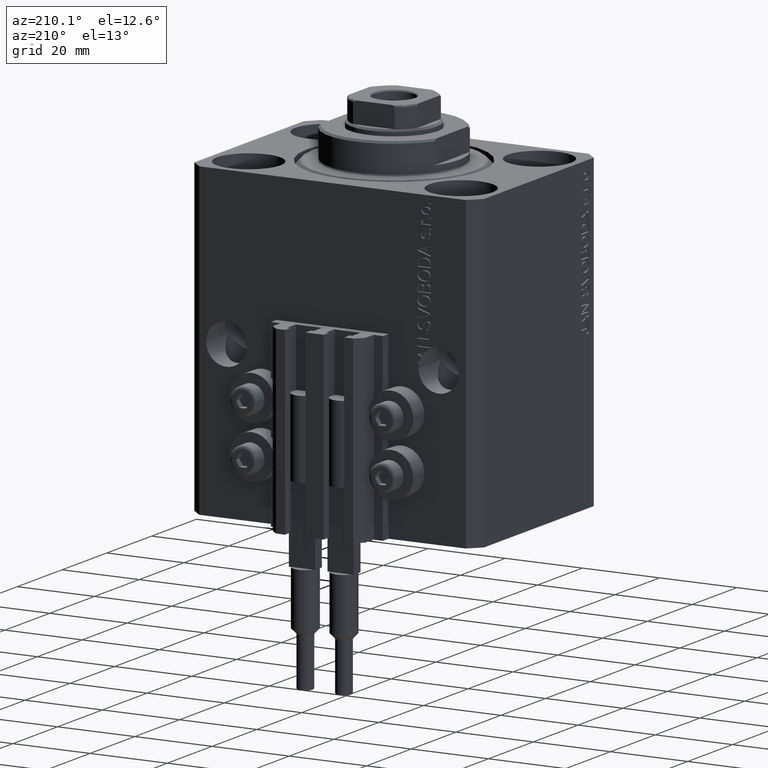
[diagram: clean part render]
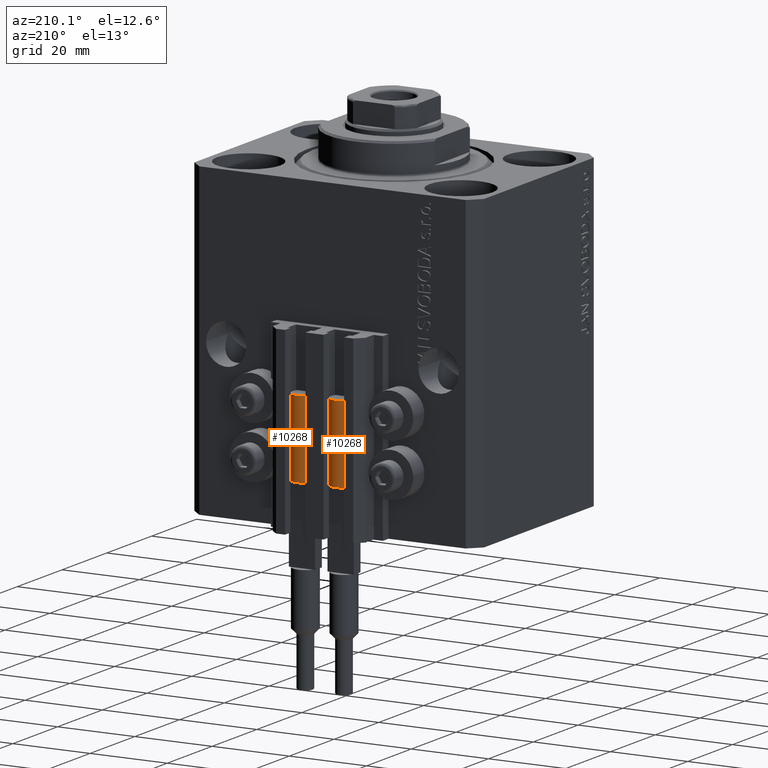
[diagram: same view with one multi-face feature highlighted, each face labeled with its STEP entity id]
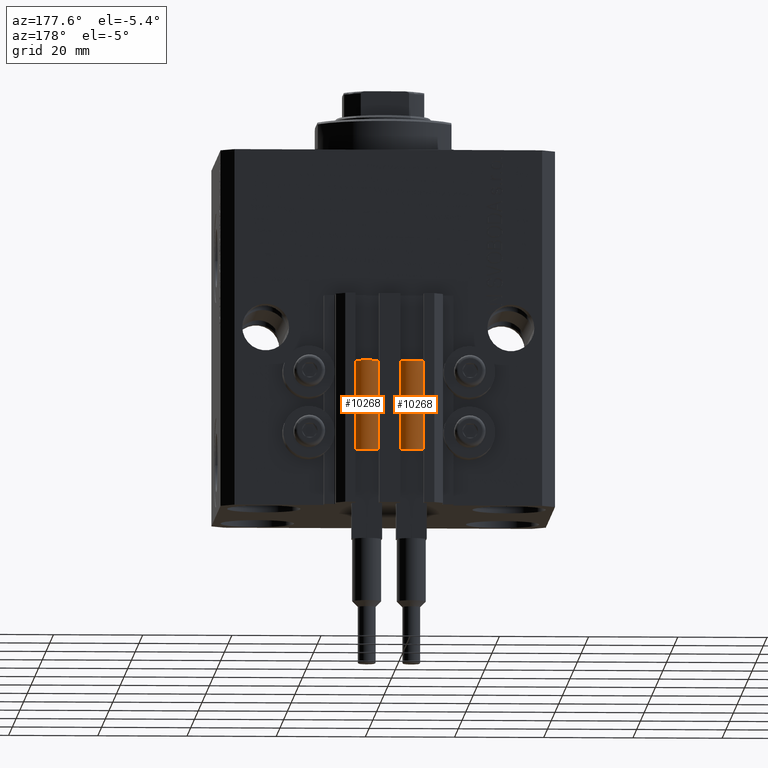
[diagram: same view with one multi-face feature highlighted, each face labeled with its STEP entity id]
A machine part, auxiliary view. The highlighted faces form ONE feature: a constant-radius fillet chain: 2 tangent blend faces with common blend radius 3.4 mm. The faces share edges in the B-rep.
A second angle (auxiliary view) of the same feature is appended — it is thin or edge-on in the first view.
Their STEP definitions:
[1] entity #10268 (Cylinder):
#235 = CARTESIAN_POINT ( 'NONE',  ( 0.000000000000000000, 0.000000000000000000, 0.000000000000000000 ) ) ;
#4156 = CIRCLE ( 'NONE', #23378, 3.400000000000000355 ) ;
#4816 = VERTEX_POINT ( 'NONE', #16350 ) ;
#5758 = ORIENTED_EDGE ( 'NONE', *, *, #6944, .F. ) ;
#6564 = EDGE_CURVE ( 'NONE', #11008, #44448, #29988, .T. ) ;
#6944 = EDGE_CURVE ( 'NONE', #38289, #43578, #4156, .T. ) ;
#8269 = CARTESIAN_POINT ( 'NONE',  ( -3.399999999999999467, -4.915049848600952119E-16, 20.00000000000000000 ) ) ;
#8871 = CIRCLE ( 'NONE', #10406, 3.400000000000000355 ) ;
#9614 = AXIS2_PLACEMENT_3D ( 'NONE', #29876, #36862, #25290 ) ;
#9730 = VERTEX_POINT ( 'NONE', #21472 ) ;
#9949 = EDGE_LOOP ( 'NONE', ( #5758, #43833, #12592, #18397, #25035, #26570 ) ) ;
#10143 = AXIS2_PLACEMENT_3D ( 'NONE', #25291, #18051, #22141 ) ;
#10263 = EDGE_CURVE ( 'NONE', #4816, #44448, #8871, .T. ) ;
#10268 = ADVANCED_FACE ( 'NONE', ( #22139 ), #10829, .T. ) ;
#10406 = AXIS2_PLACEMENT_3D ( 'NONE', #235, #25769, #11539 ) ;
#10589 = CARTESIAN_POINT ( 'NONE',  ( 3.400000000000000355, 4.163799117101001052E-16, 20.00000000000000000 ) ) ;
#10829 = CYLINDRICAL_SURFACE ( 'NONE', #9614, 3.400000000000000355 ) ;
#10850 = AXIS2_PLACEMENT_3D ( 'NONE', #33397, #22042, #18416 ) ;
#11008 = VERTEX_POINT ( 'NONE', #8269 ) ;
#11539 = DIRECTION ( 'NONE',  ( 1.000000000000000000, 0.000000000000000000, 0.000000000000000000 ) ) ;
#12592 = ORIENTED_EDGE ( 'NONE', *, *, #10263, .T. ) ;
#14217 = LINE ( 'NONE', #10589, #20894 ) ;
#14754 = CIRCLE ( 'NONE', #10143, 3.400000000000000355 ) ;
#15033 = CARTESIAN_POINT ( 'NONE',  ( -3.400000000000000355, 0.000000000000000000, 20.00000000000000000 ) ) ;
#16350 = CARTESIAN_POINT ( 'NONE',  ( 3.400000000000000355, 4.163799117101001052E-16, 0.000000000000000000 ) ) ;
#18051 = DIRECTION ( 'NONE',  ( 0.000000000000000000, 0.000000000000000000, 1.000000000000000000 ) ) ;
#18359 = CARTESIAN_POINT ( 'NONE',  ( 3.051229260478471428, 1.500000000000000000, 20.00000000000000000 ) ) ;
#18397 = ORIENTED_EDGE ( 'NONE', *, *, #6564, .F. ) ;
#18416 = DIRECTION ( 'NONE',  ( 1.000000000000000000, 0.000000000000000000, 0.000000000000000000 ) ) ;
#20894 = VECTOR ( 'NONE', #29405, 1000.000000000000000 ) ;
#21472 = CARTESIAN_POINT ( 'NONE',  ( -3.051229260478471428, 1.500000000000000000, 20.00000000000000000 ) ) ;
#21722 = CARTESIAN_POINT ( 'NONE',  ( 0.000000000000000000, 0.000000000000000000, 20.00000000000000000 ) ) ;
#22042 = DIRECTION ( 'NONE',  ( 0.000000000000000000, 0.000000000000000000, 1.000000000000000000 ) ) ;
#22139 = FACE_OUTER_BOUND ( 'NONE', #9949, .T. ) ;
#22141 = DIRECTION ( 'NONE',  ( 1.000000000000000000, 0.000000000000000000, 0.000000000000000000 ) ) ;
#23066 = CARTESIAN_POINT ( 'NONE',  ( 3.400000000000000355, 0.000000000000000000, 20.00000000000000000 ) ) ;
#23378 = AXIS2_PLACEMENT_3D ( 'NONE', #21722, #29701, #29467 ) ;
#25035 = ORIENTED_EDGE ( 'NONE', *, *, #30634, .F. ) ;
#25290 = DIRECTION ( 'NONE',  ( -1.000000000000000000, 0.000000000000000000, 0.000000000000000000 ) ) ;
#25291 = CARTESIAN_POINT ( 'NONE',  ( 0.000000000000000000, 0.000000000000000000, 20.00000000000000000 ) ) ;
#25769 = DIRECTION ( 'NONE',  ( 0.000000000000000000, 0.000000000000000000, 1.000000000000000000 ) ) ;
#26483 = VECTOR ( 'NONE', #33129, 1000.000000000000000 ) ;
#26570 = ORIENTED_EDGE ( 'NONE', *, *, #40399, .F. ) ;
#29405 = DIRECTION ( 'NONE',  ( -0.000000000000000000, -0.000000000000000000, -1.000000000000000000 ) ) ;
#29467 = DIRECTION ( 'NONE',  ( 1.000000000000000000, 0.000000000000000000, 0.000000000000000000 ) ) ;
#29701 = DIRECTION ( 'NONE',  ( 0.000000000000000000, 0.000000000000000000, 1.000000000000000000 ) ) ;
#29876 = CARTESIAN_POINT ( 'NONE',  ( 0.000000000000000000, 0.000000000000000000, 20.00000000000000000 ) ) ;
#29988 = LINE ( 'NONE', #15033, #26483 ) ;
#30634 = EDGE_CURVE ( 'NONE', #9730, #11008, #45494, .T. ) ;
#33129 = DIRECTION ( 'NONE',  ( -0.000000000000000000, -0.000000000000000000, -1.000000000000000000 ) ) ;
#33397 = CARTESIAN_POINT ( 'NONE',  ( 0.000000000000000000, 0.000000000000000000, 20.00000000000000000 ) ) ;
#36862 = DIRECTION ( 'NONE',  ( -0.000000000000000000, -0.000000000000000000, -1.000000000000000000 ) ) ;
#38289 = VERTEX_POINT ( 'NONE', #23066 ) ;
#39263 = CARTESIAN_POINT ( 'NONE',  ( -3.400000000000000355, 0.000000000000000000, 0.000000000000000000 ) ) ;
#40399 = EDGE_CURVE ( 'NONE', #43578, #9730, #14754, .T. ) ;
#40445 = EDGE_CURVE ( 'NONE', #38289, #4816, #14217, .T. ) ;
#43578 = VERTEX_POINT ( 'NONE', #18359 ) ;
#43833 = ORIENTED_EDGE ( 'NONE', *, *, #40445, .T. ) ;
#44448 = VERTEX_POINT ( 'NONE', #39263 ) ;
#45494 = CIRCLE ( 'NONE', #10850, 3.400000000000000355 ) ;
[2] entity #10268 (Cylinder):
#235 = CARTESIAN_POINT ( 'NONE',  ( 0.000000000000000000, 0.000000000000000000, 0.000000000000000000 ) ) ;
#4156 = CIRCLE ( 'NONE', #23378, 3.400000000000000355 ) ;
#4816 = VERTEX_POINT ( 'NONE', #16350 ) ;
#5758 = ORIENTED_EDGE ( 'NONE', *, *, #6944, .F. ) ;
#6564 = EDGE_CURVE ( 'NONE', #11008, #44448, #29988, .T. ) ;
#6944 = EDGE_CURVE ( 'NONE', #38289, #43578, #4156, .T. ) ;
#8269 = CARTESIAN_POINT ( 'NONE',  ( -3.399999999999999467, -4.915049848600952119E-16, 20.00000000000000000 ) ) ;
#8871 = CIRCLE ( 'NONE', #10406, 3.400000000000000355 ) ;
#9614 = AXIS2_PLACEMENT_3D ( 'NONE', #29876, #36862, #25290 ) ;
#9730 = VERTEX_POINT ( 'NONE', #21472 ) ;
#9949 = EDGE_LOOP ( 'NONE', ( #5758, #43833, #12592, #18397, #25035, #26570 ) ) ;
#10143 = AXIS2_PLACEMENT_3D ( 'NONE', #25291, #18051, #22141 ) ;
#10263 = EDGE_CURVE ( 'NONE', #4816, #44448, #8871, .T. ) ;
#10268 = ADVANCED_FACE ( 'NONE', ( #22139 ), #10829, .T. ) ;
#10406 = AXIS2_PLACEMENT_3D ( 'NONE', #235, #25769, #11539 ) ;
#10589 = CARTESIAN_POINT ( 'NONE',  ( 3.400000000000000355, 4.163799117101001052E-16, 20.00000000000000000 ) ) ;
#10829 = CYLINDRICAL_SURFACE ( 'NONE', #9614, 3.400000000000000355 ) ;
#10850 = AXIS2_PLACEMENT_3D ( 'NONE', #33397, #22042, #18416 ) ;
#11008 = VERTEX_POINT ( 'NONE', #8269 ) ;
#11539 = DIRECTION ( 'NONE',  ( 1.000000000000000000, 0.000000000000000000, 0.000000000000000000 ) ) ;
#12592 = ORIENTED_EDGE ( 'NONE', *, *, #10263, .T. ) ;
#14217 = LINE ( 'NONE', #10589, #20894 ) ;
#14754 = CIRCLE ( 'NONE', #10143, 3.400000000000000355 ) ;
#15033 = CARTESIAN_POINT ( 'NONE',  ( -3.400000000000000355, 0.000000000000000000, 20.00000000000000000 ) ) ;
#16350 = CARTESIAN_POINT ( 'NONE',  ( 3.400000000000000355, 4.163799117101001052E-16, 0.000000000000000000 ) ) ;
#18051 = DIRECTION ( 'NONE',  ( 0.000000000000000000, 0.000000000000000000, 1.000000000000000000 ) ) ;
#18359 = CARTESIAN_POINT ( 'NONE',  ( 3.051229260478471428, 1.500000000000000000, 20.00000000000000000 ) ) ;
#18397 = ORIENTED_EDGE ( 'NONE', *, *, #6564, .F. ) ;
#18416 = DIRECTION ( 'NONE',  ( 1.000000000000000000, 0.000000000000000000, 0.000000000000000000 ) ) ;
#20894 = VECTOR ( 'NONE', #29405, 1000.000000000000000 ) ;
#21472 = CARTESIAN_POINT ( 'NONE',  ( -3.051229260478471428, 1.500000000000000000, 20.00000000000000000 ) ) ;
#21722 = CARTESIAN_POINT ( 'NONE',  ( 0.000000000000000000, 0.000000000000000000, 20.00000000000000000 ) ) ;
#22042 = DIRECTION ( 'NONE',  ( 0.000000000000000000, 0.000000000000000000, 1.000000000000000000 ) ) ;
#22139 = FACE_OUTER_BOUND ( 'NONE', #9949, .T. ) ;
#22141 = DIRECTION ( 'NONE',  ( 1.000000000000000000, 0.000000000000000000, 0.000000000000000000 ) ) ;
#23066 = CARTESIAN_POINT ( 'NONE',  ( 3.400000000000000355, 0.000000000000000000, 20.00000000000000000 ) ) ;
#23378 = AXIS2_PLACEMENT_3D ( 'NONE', #21722, #29701, #29467 ) ;
#25035 = ORIENTED_EDGE ( 'NONE', *, *, #30634, .F. ) ;
#25290 = DIRECTION ( 'NONE',  ( -1.000000000000000000, 0.000000000000000000, 0.000000000000000000 ) ) ;
#25291 = CARTESIAN_POINT ( 'NONE',  ( 0.000000000000000000, 0.000000000000000000, 20.00000000000000000 ) ) ;
#25769 = DIRECTION ( 'NONE',  ( 0.000000000000000000, 0.000000000000000000, 1.000000000000000000 ) ) ;
#26483 = VECTOR ( 'NONE', #33129, 1000.000000000000000 ) ;
#26570 = ORIENTED_EDGE ( 'NONE', *, *, #40399, .F. ) ;
#29405 = DIRECTION ( 'NONE',  ( -0.000000000000000000, -0.000000000000000000, -1.000000000000000000 ) ) ;
#29467 = DIRECTION ( 'NONE',  ( 1.000000000000000000, 0.000000000000000000, 0.000000000000000000 ) ) ;
#29701 = DIRECTION ( 'NONE',  ( 0.000000000000000000, 0.000000000000000000, 1.000000000000000000 ) ) ;
#29876 = CARTESIAN_POINT ( 'NONE',  ( 0.000000000000000000, 0.000000000000000000, 20.00000000000000000 ) ) ;
#29988 = LINE ( 'NONE', #15033, #26483 ) ;
#30634 = EDGE_CURVE ( 'NONE', #9730, #11008, #45494, .T. ) ;
#33129 = DIRECTION ( 'NONE',  ( -0.000000000000000000, -0.000000000000000000, -1.000000000000000000 ) ) ;
#33397 = CARTESIAN_POINT ( 'NONE',  ( 0.000000000000000000, 0.000000000000000000, 20.00000000000000000 ) ) ;
#36862 = DIRECTION ( 'NONE',  ( -0.000000000000000000, -0.000000000000000000, -1.000000000000000000 ) ) ;
#38289 = VERTEX_POINT ( 'NONE', #23066 ) ;
#39263 = CARTESIAN_POINT ( 'NONE',  ( -3.400000000000000355, 0.000000000000000000, 0.000000000000000000 ) ) ;
#40399 = EDGE_CURVE ( 'NONE', #43578, #9730, #14754, .T. ) ;
#40445 = EDGE_CURVE ( 'NONE', #38289, #4816, #14217, .T. ) ;
#43578 = VERTEX_POINT ( 'NONE', #18359 ) ;
#43833 = ORIENTED_EDGE ( 'NONE', *, *, #40445, .T. ) ;
#44448 = VERTEX_POINT ( 'NONE', #39263 ) ;
#45494 = CIRCLE ( 'NONE', #10850, 3.400000000000000355 ) ;